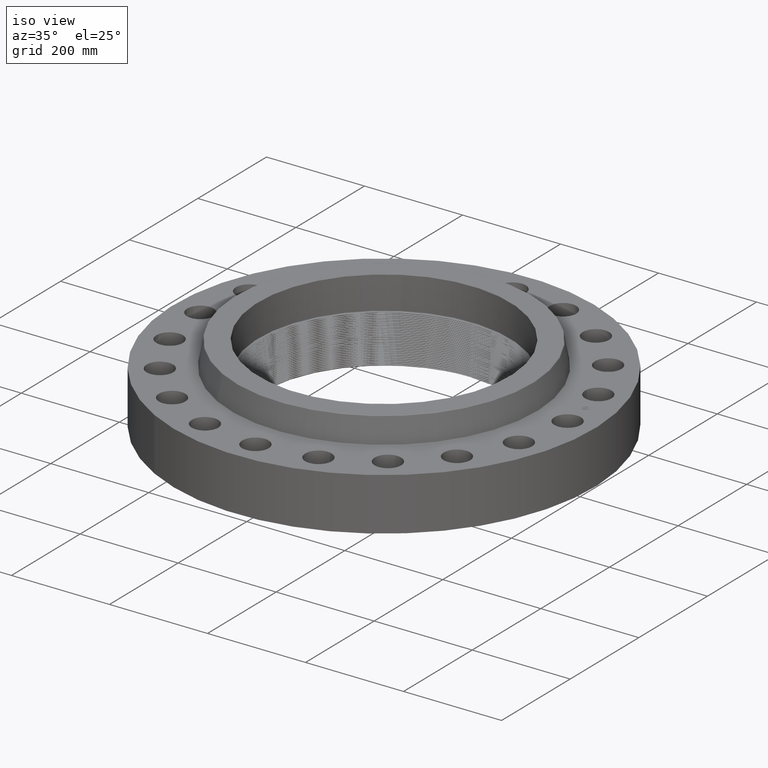
[diagram: clean part render]
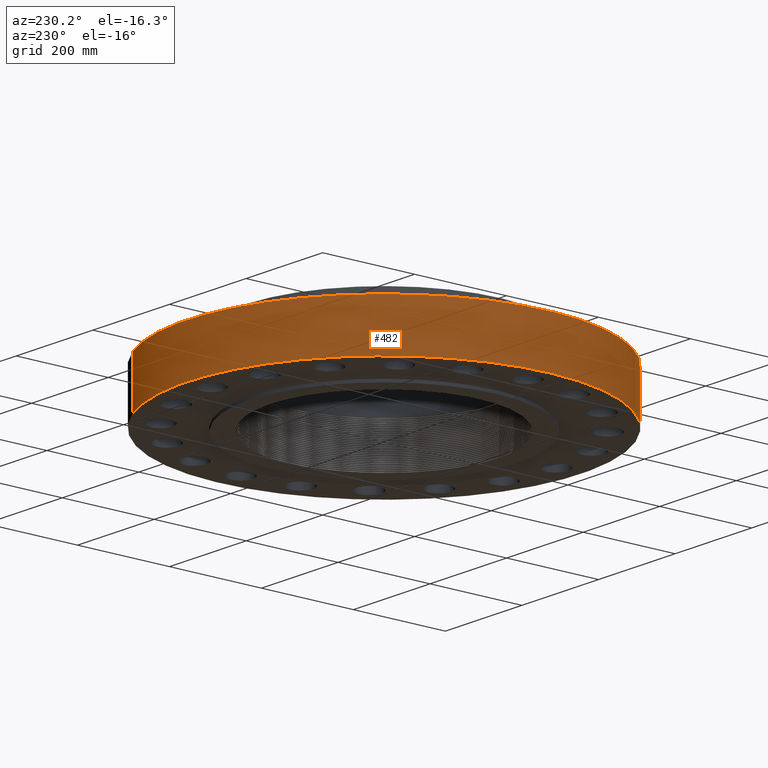
[diagram: tour spotlight — one face highlighted and labeled with its STEP entity id]
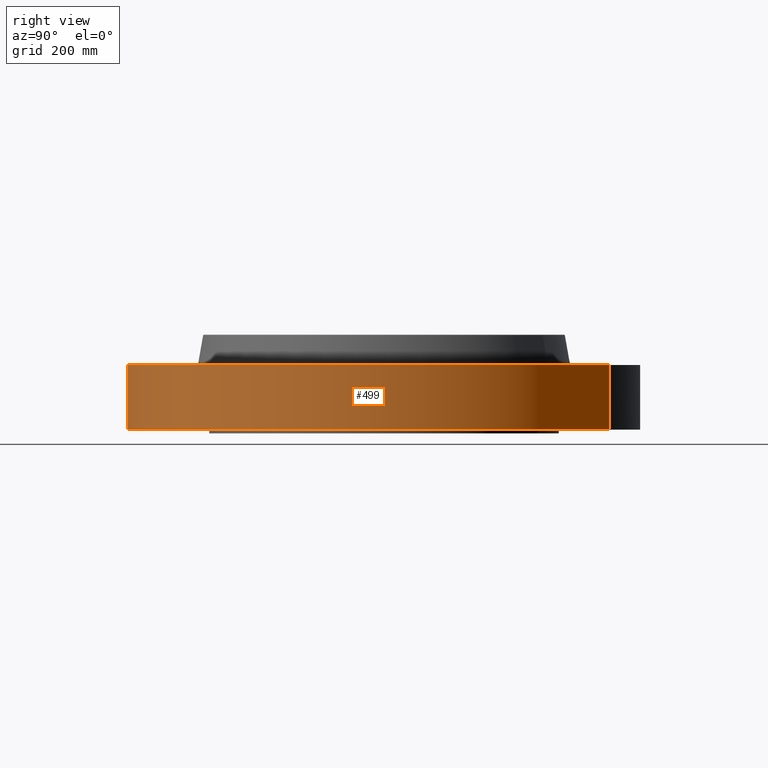
[diagram: tour spotlight — one face highlighted and labeled with its STEP entity id]
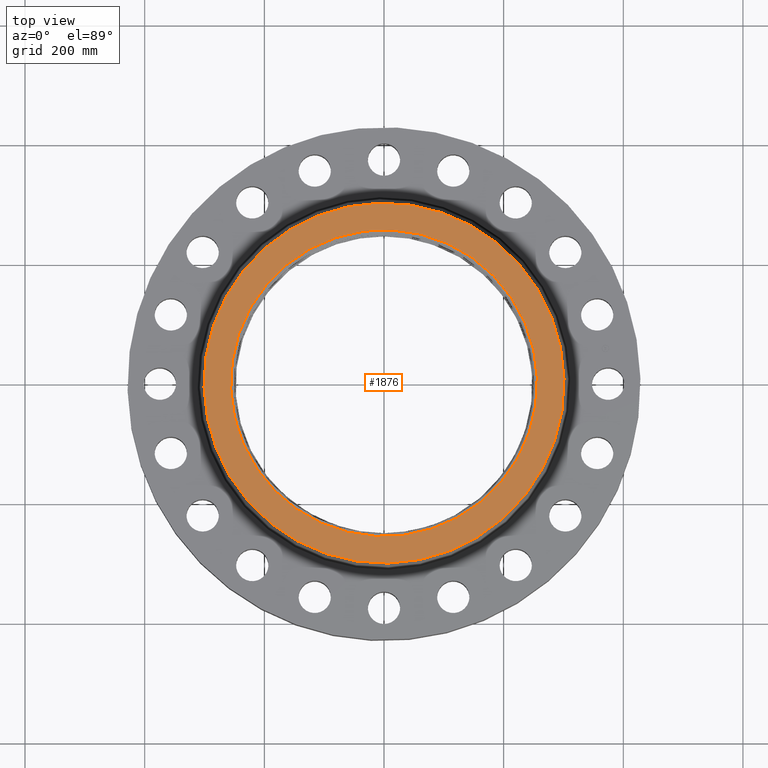
[diagram: tour spotlight — one face highlighted and labeled with its STEP entity id]
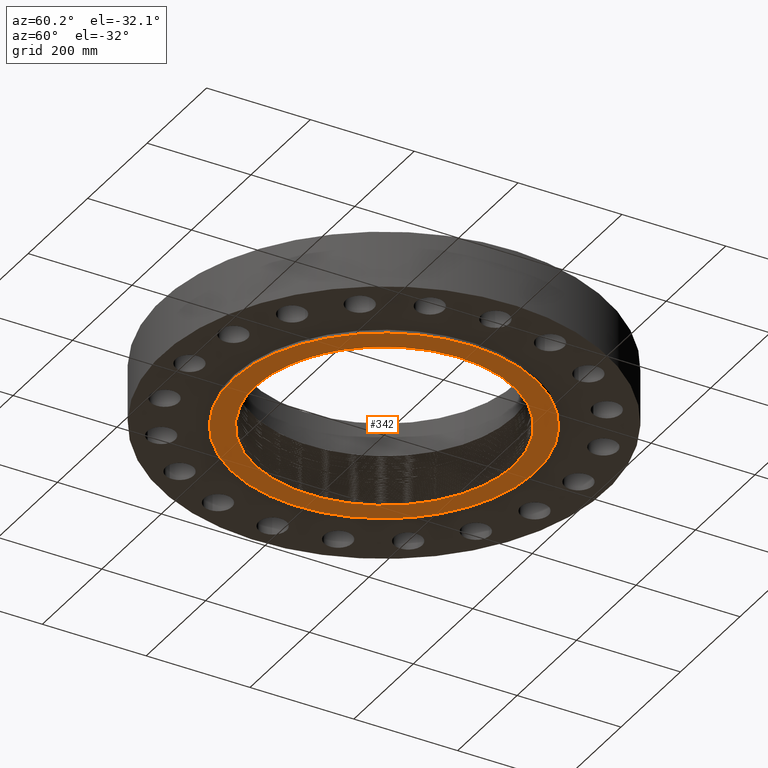
[diagram: tour spotlight — one face highlighted and labeled with its STEP entity id]
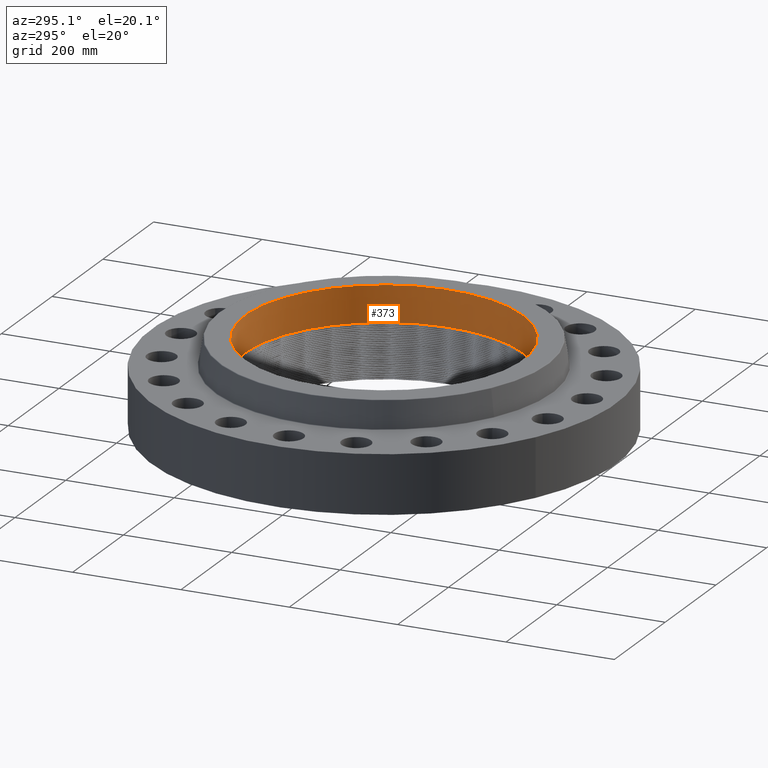
[diagram: tour spotlight — one face highlighted and labeled with its STEP entity id]
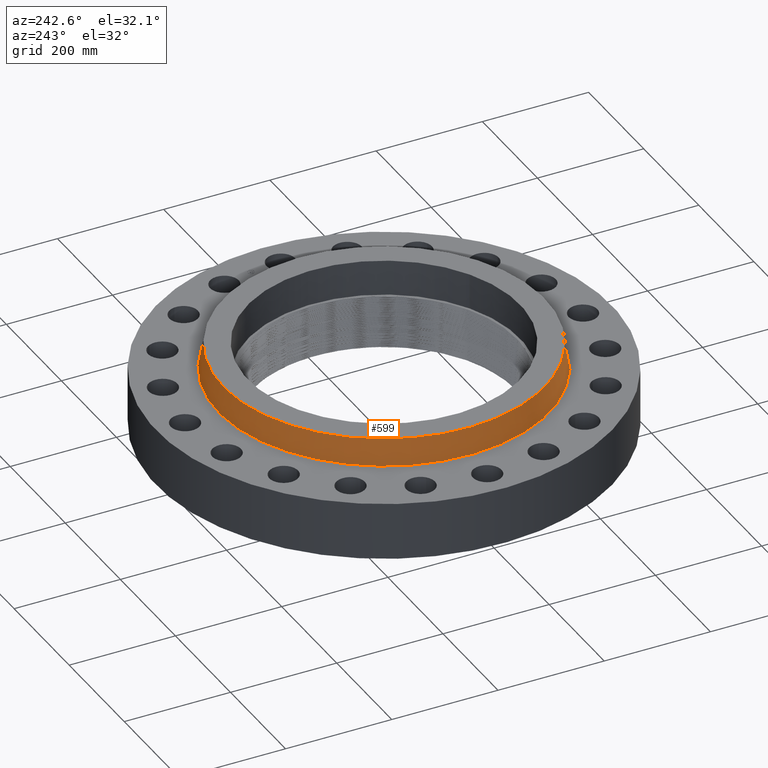
[diagram: tour spotlight — one face highlighted and labeled with its STEP entity id]
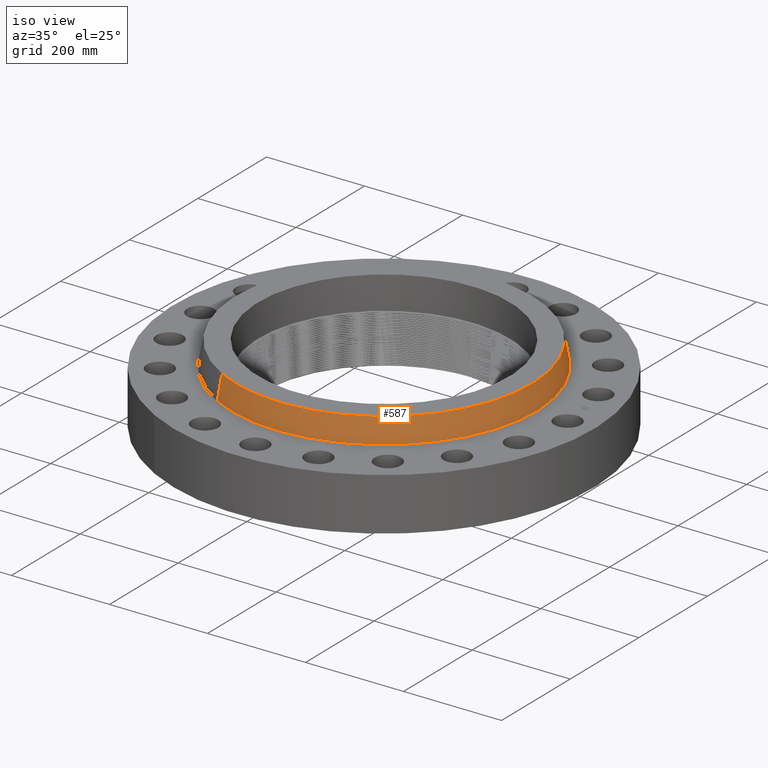
[diagram: tour spotlight — one face highlighted and labeled with its STEP entity id]
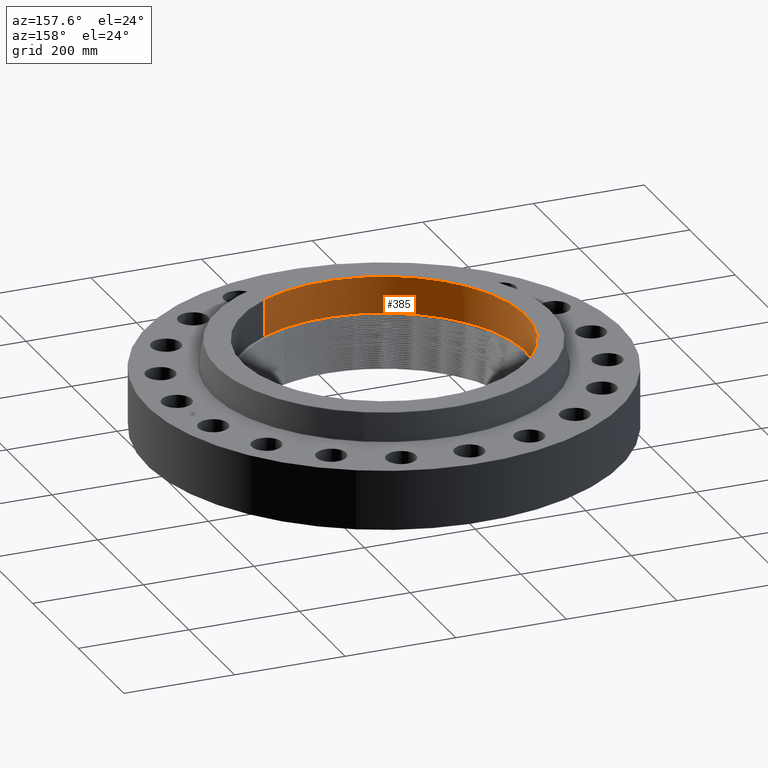
[diagram: tour spotlight — one face highlighted and labeled with its STEP entity id]
A machine part: a face-by-face anatomy tour. The part has 758 B-rep faces; the first image is the clean iso view, then the 8 largest visible faces are spotlighted one at a time (largest first), each with its STEP entity span.

Face 1 — auxiliary view, entity #482. In plain terms, the highlighted cylindrical surface (partial cylindrical patch) has radius 428.625 mm, axis along (0, 0, -1).
Definition (entity closure, byte-faithful):
#446=AXIS2_PLACEMENT_3D('Cylinder Axis2P3D',#443,#444,#445) ;
#450=AXIS2_PLACEMENT_3D('Circle Axis2P3D',#448,#449,$) ;
#466=AXIS2_PLACEMENT_3D('Circle Axis2P3D',#464,#465,$) ;
#443=CARTESIAN_POINT('Axis2P3D Location',(0.,0.,3.00000000001)) ;
#448=CARTESIAN_POINT('Axis2P3D Location',(0.,0.,2.23792987641E-015)) ;
#452=CARTESIAN_POINT('Vertex',(-8.09030596398,-14.809205732,2.23792987641E-015)) ;
#454=CARTESIAN_POINT('Vertex',(8.09030596398,14.809205732,2.23792987641E-015)) ;
#457=CARTESIAN_POINT('Line Origine',(-8.09030596398,-14.809205732,2.12500000001)) ;
#461=CARTESIAN_POINT('Vertex',(-8.09030596398,-14.809205732,4.25000000002)) ;
#464=CARTESIAN_POINT('Axis2P3D Location',(0.,0.,4.25000000002)) ;
#468=CARTESIAN_POINT('Vertex',(8.09030596398,14.809205732,4.25000000002)) ;
#471=CARTESIAN_POINT('Line Origine',(8.09030596398,14.809205732,2.12500000001)) ;
#444=DIRECTION('Axis2P3D Direction',(0.,0.,-0.0393700787402)) ;
#445=DIRECTION('Axis2P3D XDirection',(0.0188750212049,0.0345504945626,0.)) ;
#449=DIRECTION('Axis2P3D Direction',(0.,0.,-0.0393700787402)) ;
#458=DIRECTION('Vector Direction',(0.,0.,-0.0393700787402)) ;
#465=DIRECTION('Axis2P3D Direction',(0.,0.,-0.0393700787402)) ;
#472=DIRECTION('Vector Direction',(0.,0.,-0.0393700787402)) ;
#459=VECTOR('Line Direction',#458,0.0393700787402) ;
#473=VECTOR('Line Direction',#472,0.0393700787402) ;
#477=ORIENTED_EDGE('',*,*,#456,.F.) ;
#478=ORIENTED_EDGE('',*,*,#463,.T.) ;
#479=ORIENTED_EDGE('',*,*,#470,.T.) ;
#480=ORIENTED_EDGE('',*,*,#475,.F.) ;
#482=ADVANCED_FACE('PartBody',(#481),#447,.T.) ;
#451=CIRCLE('generated circle',#450,16.8750000001) ;
#467=CIRCLE('generated circle',#466,16.8750000001) ;
#447=CYLINDRICAL_SURFACE('generated cylinder',#446,16.8750000001) ;
#456=EDGE_CURVE('',#453,#455,#451,.T.) ;
#463=EDGE_CURVE('',#453,#462,#460,.F.) ;
#470=EDGE_CURVE('',#462,#469,#467,.T.) ;
#475=EDGE_CURVE('',#455,#469,#474,.F.) ;
#476=EDGE_LOOP('',(#477,#478,#479,#480)) ;
#481=FACE_OUTER_BOUND('',#476,.T.) ;
#460=LINE('Line',#457,#459) ;
#474=LINE('Line',#471,#473) ;
#453=VERTEX_POINT('',#452) ;
#455=VERTEX_POINT('',#454) ;
#462=VERTEX_POINT('',#461) ;
#469=VERTEX_POINT('',#468) ;

Face 2 — right view, entity #499. In plain terms, the highlighted cylindrical surface (partial cylindrical patch) has radius 428.625 mm, axis along (0, 0, -1).
Definition (entity closure, byte-faithful):
#446=AXIS2_PLACEMENT_3D('Cylinder Axis2P3D',#443,#444,#445) ;
#485=AXIS2_PLACEMENT_3D('Circle Axis2P3D',#483,#484,$) ;
#490=AXIS2_PLACEMENT_3D('Circle Axis2P3D',#488,#489,$) ;
#443=CARTESIAN_POINT('Axis2P3D Location',(0.,0.,3.00000000001)) ;
#452=CARTESIAN_POINT('Vertex',(-8.09030596398,-14.809205732,2.23792987641E-015)) ;
#454=CARTESIAN_POINT('Vertex',(8.09030596398,14.809205732,2.23792987641E-015)) ;
#457=CARTESIAN_POINT('Line Origine',(-8.09030596398,-14.809205732,2.12500000001)) ;
#461=CARTESIAN_POINT('Vertex',(-8.09030596398,-14.809205732,4.25000000002)) ;
#468=CARTESIAN_POINT('Vertex',(8.09030596398,14.809205732,4.25000000002)) ;
#471=CARTESIAN_POINT('Line Origine',(8.09030596398,14.809205732,2.12500000001)) ;
#483=CARTESIAN_POINT('Axis2P3D Location',(0.,0.,2.23792987641E-015)) ;
#488=CARTESIAN_POINT('Axis2P3D Location',(0.,0.,4.25000000002)) ;
#444=DIRECTION('Axis2P3D Direction',(0.,0.,-0.0393700787402)) ;
#445=DIRECTION('Axis2P3D XDirection',(0.0188750212049,0.0345504945626,0.)) ;
#458=DIRECTION('Vector Direction',(0.,0.,-0.0393700787402)) ;
#472=DIRECTION('Vector Direction',(0.,0.,-0.0393700787402)) ;
#484=DIRECTION('Axis2P3D Direction',(0.,0.,-0.0393700787402)) ;
#489=DIRECTION('Axis2P3D Direction',(0.,0.,-0.0393700787402)) ;
#459=VECTOR('Line Direction',#458,0.0393700787402) ;
#473=VECTOR('Line Direction',#472,0.0393700787402) ;
#494=ORIENTED_EDGE('',*,*,#487,.F.) ;
#495=ORIENTED_EDGE('',*,*,#475,.T.) ;
#496=ORIENTED_EDGE('',*,*,#492,.T.) ;
#497=ORIENTED_EDGE('',*,*,#463,.F.) ;
#499=ADVANCED_FACE('PartBody',(#498),#447,.T.) ;
#486=CIRCLE('generated circle',#485,16.8750000001) ;
#491=CIRCLE('generated circle',#490,16.8750000001) ;
#447=CYLINDRICAL_SURFACE('generated cylinder',#446,16.8750000001) ;
#463=EDGE_CURVE('',#453,#462,#460,.F.) ;
#475=EDGE_CURVE('',#455,#469,#474,.F.) ;
#487=EDGE_CURVE('',#455,#453,#486,.T.) ;
#492=EDGE_CURVE('',#469,#462,#491,.T.) ;
#493=EDGE_LOOP('',(#494,#495,#496,#497)) ;
#498=FACE_OUTER_BOUND('',#493,.T.) ;
#460=LINE('Line',#457,#459) ;
#474=LINE('Line',#471,#473) ;
#453=VERTEX_POINT('',#452) ;
#455=VERTEX_POINT('',#454) ;
#462=VERTEX_POINT('',#461) ;
#469=VERTEX_POINT('',#468) ;

Face 3 — top view, entity #1876. In plain terms, the highlighted planar face has unit normal (0, 0, -1).
Definition (entity closure, byte-faithful):
#350=AXIS2_PLACEMENT_3D('Circle Axis2P3D',#348,#349,$) ;
#376=AXIS2_PLACEMENT_3D('Circle Axis2P3D',#374,#375,$) ;
#614=AXIS2_PLACEMENT_3D('Circle Axis2P3D',#612,#613,$) ;
#633=AXIS2_PLACEMENT_3D('Circle Axis2P3D',#631,#632,$) ;
#1866=AXIS2_PLACEMENT_3D('Plane Axis2P3D',#1863,#1864,#1865) ;
#348=CARTESIAN_POINT('Axis2P3D Location',(0.,0.,6.25000000003)) ;
#352=CARTESIAN_POINT('Vertex',(-4.83980081223,8.85919596232,6.25000000003)) ;
#354=CARTESIAN_POINT('Vertex',(4.83980081223,-8.85919596232,6.25000000003)) ;
#374=CARTESIAN_POINT('Axis2P3D Location',(0.,0.,6.25000000003)) ;
#609=CARTESIAN_POINT('Vertex',(5.67975438497,10.396720664,6.25000000003)) ;
#612=CARTESIAN_POINT('Axis2P3D Location',(0.,0.,6.25000000003)) ;
#616=CARTESIAN_POINT('Vertex',(-5.67975438497,-10.396720664,6.25000000003)) ;
#631=CARTESIAN_POINT('Axis2P3D Location',(0.,0.,6.25000000003)) ;
#1863=CARTESIAN_POINT('Axis2P3D Location',(0.,11.8470000608,6.25000000003)) ;
#349=DIRECTION('Axis2P3D Direction',(0.,0.,0.0393700787402)) ;
#375=DIRECTION('Axis2P3D Direction',(0.,0.,0.0393700787402)) ;
#613=DIRECTION('Axis2P3D Direction',(0.,0.,-0.0393700787402)) ;
#632=DIRECTION('Axis2P3D Direction',(0.,0.,-0.0393700787402)) ;
#1864=DIRECTION('Axis2P3D Direction',(0.,0.,-0.0393700787402)) ;
#1865=DIRECTION('Axis2P3D XDirection',(0.0393700787402,0.,0.)) ;
#1869=ORIENTED_EDGE('',*,*,#618,.F.) ;
#1870=ORIENTED_EDGE('',*,*,#635,.F.) ;
#1873=ORIENTED_EDGE('',*,*,#356,.T.) ;
#1874=ORIENTED_EDGE('',*,*,#378,.T.) ;
#1875=FACE_BOUND('',#1872,.T.) ;
#1876=ADVANCED_FACE('PartBody',(#1871,#1875),#1867,.F.) ;
#351=CIRCLE('generated circle',#350,10.095) ;
#377=CIRCLE('generated circle',#376,10.095) ;
#615=CIRCLE('generated circle',#614,11.8470000608) ;
#634=CIRCLE('generated circle',#633,11.8470000608) ;
#356=EDGE_CURVE('',#353,#355,#351,.F.) ;
#378=EDGE_CURVE('',#355,#353,#377,.F.) ;
#618=EDGE_CURVE('',#610,#617,#615,.T.) ;
#635=EDGE_CURVE('',#617,#610,#634,.T.) ;
#1868=EDGE_LOOP('',(#1869,#1870)) ;
#1872=EDGE_LOOP('',(#1873,#1874)) ;
#1871=FACE_OUTER_BOUND('',#1868,.T.) ;
#1867=PLANE('',#1866) ;
#353=VERTEX_POINT('',#352) ;
#355=VERTEX_POINT('',#354) ;
#610=VERTEX_POINT('',#609) ;
#617=VERTEX_POINT('',#616) ;

Face 4 — auxiliary view, entity #342. In plain terms, the highlighted planar face has unit normal (0, 0, -1).
Definition (entity closure, byte-faithful):
#195=AXIS2_PLACEMENT_3D('Plane Axis2P3D',#192,#193,#194) ;
#199=AXIS2_PLACEMENT_3D('Circle Axis2P3D',#197,#198,$) ;
#208=AXIS2_PLACEMENT_3D('Circle Axis2P3D',#206,#207,$) ;
#330=AXIS2_PLACEMENT_3D('Circle Axis2P3D',#328,#329,$) ;
#192=CARTESIAN_POINT('Axis2P3D Location',(0.,0.,-0.250000000001)) ;
#197=CARTESIAN_POINT('Axis2P3D Location',(0.,0.,-0.250000000001)) ;
#201=CARTESIAN_POINT('Vertex',(5.51339369397,10.0921994618,-0.250000000001)) ;
#203=CARTESIAN_POINT('Vertex',(-5.51339369397,-10.0921994618,-0.250000000001)) ;
#206=CARTESIAN_POINT('Axis2P3D Location',(0.,0.,-0.250000000001)) ;
#216=CARTESIAN_POINT('Control Point',(4.68593768939,-8.57755435564,-0.250000000001)) ;
#217=CARTESIAN_POINT('Control Point',(4.20009192407,-8.8410177948,-0.250000000001)) ;
#218=CARTESIAN_POINT('Control Point',(3.6956726276,-9.07011392471,-0.250000000001)) ;
#219=CARTESIAN_POINT('Control Point',(3.17592890707,-9.26308453131,-0.250000000001)) ;
#220=CARTESIAN_POINT('Control Point',(2.64435840526,-9.41864359521,-0.250000000001)) ;
#221=CARTESIAN_POINT('Control Point',(2.10454975658,-9.53601865754,-0.250000000001)) ;
#222=CARTESIAN_POINT('Vertex',(4.68593768939,-8.57755435564,-0.250000000001)) ;
#224=CARTESIAN_POINT('Vertex',(2.10454972516,-9.53601879853,-0.25000001683)) ;
#228=CARTESIAN_POINT('Control Point',(1.57569914282E-007,9.85422903371,-0.250000000001)) ;
#229=CARTESIAN_POINT('Control Point',(0.610416221726,9.85234932571,-0.250000000001)) ;
#230=CARTESIAN_POINT('Control Point',(1.22061590325,9.8032044308,-0.250000000001)) ;
#231=CARTESIAN_POINT('Control Point',(1.82565042755,9.70682436543,-0.250000000001)) ;
#232=CARTESIAN_POINT('Control Point',(3.01584733147,9.42115871141,-0.250000000001)) ;
#233=CARTESIAN_POINT('Control Point',(4.1473089878,8.95583857676,-0.250000000001)) ;
#234=CARTESIAN_POINT('Control Point',(4.69384230738,8.67972376104,-0.250000000001)) ;
#235=CARTESIAN_POINT('Control Point',(5.73960656408,8.04512779312,-0.250000000001)) ;
#236=CARTESIAN_POINT('Control Point',(6.67485528703,7.2572448977,-0.250000000001)) ;
#237=CARTESIAN_POINT('Control Point',(7.11095815466,6.82777664671,-0.250000000001)) ;
#238=CARTESIAN_POINT('Control Point',(7.91286316613,5.90493635664,-0.250000000001)) ;
#239=CARTESIAN_POINT('Control Point',(8.56290593034,4.86957701129,-0.250000000001)) ;
#240=CARTESIAN_POINT('Control Point',(8.84701328967,4.32776207451,-0.250000000001)) ;
#241=CARTESIAN_POINT('Control Point',(9.21640499851,3.46661885481,-0.250000000001)) ;
#242=CARTESIAN_POINT('Control Point',(9.4805811954,2.56970400113,-0.250000000001)) ;
#243=CARTESIAN_POINT('Control Point',(9.5594864813,2.2541685813,-0.250000000001)) ;
#244=CARTESIAN_POINT('Control Point',(9.74853074058,1.33869826719,-0.250000000001)) ;
#245=CARTESIAN_POINT('Control Point',(9.82788611182,0.40545509554,-0.250000000001)) ;
#246=CARTESIAN_POINT('Control Point',(9.83219854977,-0.205868440599,-0.250000000001)) ;
#247=CARTESIAN_POINT('Control Point',(9.74591661854,-1.42413371925,-0.250000000001)) ;
#248=CARTESIAN_POINT('Control Point',(9.47277296532,-2.61400400498,-0.250000000001)) ;
#249=CARTESIAN_POINT('Control Point',(9.290193056,-3.19710814977,-0.250000000001)) ;
#250=CARTESIAN_POINT('Control Point',(8.83605107021,-4.33006479226,-0.250000000001)) ;
#251=CARTESIAN_POINT('Control Point',(8.21258836213,-5.3790872163,-0.250000000001)) ;
#252=CARTESIAN_POINT('Control Point',(7.86068090376,-5.87826101619,-0.250000000001)) ;
#253=CARTESIAN_POINT('Control Point',(7.09039677128,-6.80793984618,-0.250000000001)) ;
#254=CARTESIAN_POINT('Control Point',(6.18718991217,-7.60877368734,-0.250000000001)) ;
#255=CARTESIAN_POINT('Control Point',(5.71104483861,-7.97010097764,-0.250000000001)) ;
#256=CARTESIAN_POINT('Control Point',(5.20926397783,-8.29376605565,-0.250000000001)) ;
#257=CARTESIAN_POINT('Control Point',(4.68593768939,-8.57755435564,-0.250000000001)) ;
#258=CARTESIAN_POINT('Vertex',(1.57569920716E-007,9.85422903371,-0.250000000001)) ;
#262=CARTESIAN_POINT('Control Point',(-3.19484020036,9.33253356259,-0.250000000001)) ;
#263=CARTESIAN_POINT('Control Point',(-2.6165001339,9.52853331578,-0.250000000001)) ;
#264=CARTESIAN_POINT('Control Point',(-2.02306503866,9.6797554251,-0.250000000001)) ;
#265=CARTESIAN_POINT('Control Point',(-1.4191451144,9.78464406175,-0.250000000001)) ;
#266=CARTESIAN_POINT('Control Point',(-0.769797011607,9.84612996914,-0.250000000001)) ;
#267=CARTESIAN_POINT('Control Point',(-0.119602763731,9.85399247922,-0.250000000001)) ;
#268=CARTESIAN_POINT('Control Point',(-0.0797339943699,9.85427295399,-0.250000000001)) ;
#269=CARTESIAN_POINT('Control Point',(-0.0398664694022,9.85435179853,-0.250000000001)) ;
#270=CARTESIAN_POINT('Control Point',(1.57569920698E-007,9.85422903371,-0.250000000001)) ;
#271=CARTESIAN_POINT('Vertex',(-3.19484020036,9.33253356259,-0.250000000001)) ;
#275=CARTESIAN_POINT('Control Point',(-4.7264312441,8.65167418276,-0.250000000001)) ;
#276=CARTESIAN_POINT('Control Point',(-4.43248304411,8.81355971045,-0.250000000001)) ;
#277=CARTESIAN_POINT('Control Point',(-4.13162386382,8.9629505345,-0.250000000001)) ;
#278=CARTESIAN_POINT('Control Point',(-3.82456446674,9.09945325395,-0.250000000001)) ;
#279=CARTESIAN_POINT('Control Point',(-3.5120484608,9.22273618015,-0.250000000001)) ;
#280=CARTESIAN_POINT('Control Point',(-3.19484020036,9.33253356259,-0.250000000001)) ;
#281=CARTESIAN_POINT('Vertex',(-4.7264312441,8.65167418276,-0.250000000001)) ;
#285=CARTESIAN_POINT('Control Point',(-4.7264312441,8.65167418276,-0.250000000001)) ;
#286=CARTESIAN_POINT('Control Point',(-5.26122669512,8.35714731115,-0.250000000001)) ;
#287=CARTESIAN_POINT('Control Point',(-5.77315102572,8.02125978352,-0.250000000001)) ;
#288=CARTESIAN_POINT('Control Point',(-6.25789094751,7.64640100789,-0.250000000001)) ;
#289=CARTESIAN_POINT('Control Point',(-7.16534164377,6.824721884,-0.250000000001)) ;
#290=CARTESIAN_POINT('Control Point',(-7.93511981474,5.87354312002,-0.250000000001)) ;
#291=CARTESIAN_POINT('Control Point',(-8.28231396647,5.36904437274,-0.250000000001)) ;
#292=CARTESIAN_POINT('Control Point',(-8.89565639916,4.31050392781,-0.250000000001)) ;
#293=CARTESIAN_POINT('Control Point',(-9.33851009407,3.17042953184,-0.250000000001)) ;
#294=CARTESIAN_POINT('Control Point',(-9.51522413409,2.58436870658,-0.250000000001)) ;
#295=CARTESIAN_POINT('Control Point',(-9.776316067,1.38984308136,-0.250000000001)) ;
#296=CARTESIAN_POINT('Control Point',(-9.85016480226,0.169463632781,-0.250000000001)) ;
#297=CARTESIAN_POINT('Control Point',(-9.83960751202,-0.442280020623,-0.250000000001)) ;
#298=CARTESIAN_POINT('Control Point',(-9.74300742841,-1.45629362383,-0.250000000001)) ;
#299=CARTESIAN_POINT('Control Point',(-9.51710196244,-2.44757268736,-0.250000000001)) ;
#300=CARTESIAN_POINT('Control Point',(-9.40631003395,-2.83899096696,-0.250000000001)) ;
#301=CARTESIAN_POINT('Control Point',(-9.07921262966,-3.80147451815,-0.250000000001)) ;
#302=CARTESIAN_POINT('Control Point',(-8.63032961115,-4.71494441247,-0.250000000001)) ;
#303=CARTESIAN_POINT('Control Point',(-8.31894761684,-5.2409098977,-0.250000000001)) ;
#304=CARTESIAN_POINT('Control Point',(-7.61712973365,-6.24017690955,-0.250000000001)) ;
#305=CARTESIAN_POINT('Control Point',(-6.76985684702,-7.11879277493,-0.250000000001)) ;
#306=CARTESIAN_POINT('Control Point',(-6.31287773191,-7.52427252549,-0.250000000001)) ;
#307=CARTESIAN_POINT('Control Point',(-5.3398811265,-8.26081372572,-0.250000000001)) ;
#308=CARTESIAN_POINT('Control Point',(-4.26500646256,-8.8381825511,-0.250000000001)) ;
#309=CARTESIAN_POINT('Control Point',(-3.70623984621,-9.08442660026,-0.250000000001)) ;
#310=CARTESIAN_POINT('Control Point',(-2.64383446271,-9.4569087194,-0.250000000001)) ;
#311=CARTESIAN_POINT('Control Point',(-1.54009490776,-9.67373577606,-0.250000000001)) ;
#312=CARTESIAN_POINT('Control Point',(-1.02856074082,-9.73963651866,-0.250000000001)) ;
#313=CARTESIAN_POINT('Control Point',(-0.514191689865,-9.77169906453,-0.250000000001)) ;
#314=CARTESIAN_POINT('Control Point',(1.42950295157E-006,-9.76993382593,-0.250000000001)) ;
#315=CARTESIAN_POINT('Vertex',(1.42950296388E-006,-9.76993382593,-0.250000000001)) ;
#319=CARTESIAN_POINT('Control Point',(1.42950296276E-006,-9.76993382593,-0.250000000001)) ;
#320=CARTESIAN_POINT('Control Point',(0.258902883289,-9.76904501041,-0.250000000001)) ;
#321=CARTESIAN_POINT('Control Point',(0.517765197704,-9.75958007331,-0.250000000001)) ;
#322=CARTESIAN_POINT('Control Point',(0.776206616301,-9.74154037274,-0.250000000001)) ;
#323=CARTESIAN_POINT('Control Point',(1.03384646009,-9.71495305319,-0.250000000001)) ;
#324=CARTESIAN_POINT('Control Point',(1.29030848188,-9.67987033985,-0.250000000001)) ;
#325=CARTESIAN_POINT('Vertex',(1.29030863625,-9.67987023403,-0.249999930258)) ;
#328=CARTESIAN_POINT('Axis2P3D Location',(0.,0.,-0.250000000001)) ;
#193=DIRECTION('Axis2P3D Direction',(0.,0.,-0.0393700787402)) ;
#194=DIRECTION('Axis2P3D XDirection',(0.0393700787402,0.,0.)) ;
#198=DIRECTION('Axis2P3D Direction',(0.,0.,-0.0393700787402)) ;
#207=DIRECTION('Axis2P3D Direction',(0.,0.,-0.0393700787402)) ;
#329=DIRECTION('Axis2P3D Direction',(0.,0.,-0.0393700787402)) ;
#212=ORIENTED_EDGE('',*,*,#205,.T.) ;
#213=ORIENTED_EDGE('',*,*,#210,.T.) ;
#334=ORIENTED_EDGE('',*,*,#226,.F.) ;
#335=ORIENTED_EDGE('',*,*,#260,.F.) ;
#336=ORIENTED_EDGE('',*,*,#273,.F.) ;
#337=ORIENTED_EDGE('',*,*,#283,.F.) ;
#338=ORIENTED_EDGE('',*,*,#317,.T.) ;
#339=ORIENTED_EDGE('',*,*,#327,.T.) ;
#340=ORIENTED_EDGE('',*,*,#332,.F.) ;
#341=FACE_BOUND('',#333,.T.) ;
#342=ADVANCED_FACE('PartBody',(#214,#341),#196,.T.) ;
#215=B_SPLINE_CURVE_WITH_KNOTS('',5,(#216,#217,#218,#219,#220,#221),.UNSPECIFIED.,.F.,.U.,(6,6),(0.,99.460535526),.UNSPECIFIED.) ;
#227=B_SPLINE_CURVE_WITH_KNOTS('',5,(#228,#229,#230,#231,#232,#233,#234,#235,#236,#237,#238,#239,#240,#241,#242,#243,#244,#245,#246,#247,#248,#249,#250,#251,#252,#253,#254,#255,#256,#257),.UNSPECIFIED.,.F.,.U.,(6,3,3,3,3,3,3,3,3,6),(0.,109.412050322,218.868838719,328.345280374,437.782158485,496.130348517,605.534630873,714.971114515,824.408812297,931.542220924),.UNSPECIFIED.) ;
#261=B_SPLINE_CURVE_WITH_KNOTS('',5,(#262,#263,#264,#265,#266,#267,#268,#269,#270),.UNSPECIFIED.,.F.,.U.,(6,3,6),(0.,109.400248174,116.5460126),.UNSPECIFIED.) ;
#274=B_SPLINE_CURVE_WITH_KNOTS('',5,(#275,#276,#277,#278,#279,#280),.UNSPECIFIED.,.F.,.U.,(6,6),(0.,60.1371670471),.UNSPECIFIED.) ;
#284=B_SPLINE_CURVE_WITH_KNOTS('',5,(#285,#286,#287,#288,#289,#290,#291,#292,#293,#294,#295,#296,#297,#298,#299,#300,#301,#302,#303,#304,#305,#306,#307,#308,#309,#310,#311,#312,#313,#314),.UNSPECIFIED.,.F.,.U.,(6,3,3,3,3,3,3,3,3,6),(0.,109.410717169,218.855539651,328.305694609,437.724593054,510.665846362,620.113681952,729.601257083,839.068765206,931.639855687),.UNSPECIFIED.) ;
#318=B_SPLINE_CURVE_WITH_KNOTS('',5,(#319,#320,#321,#322,#323,#324),.UNSPECIFIED.,.F.,.U.,(6,6),(0.,46.6104834956),.UNSPECIFIED.) ;
#200=CIRCLE('generated circle',#199,11.5) ;
#209=CIRCLE('generated circle',#208,11.5) ;
#331=CIRCLE('generated circle',#330,9.76548944405) ;
#205=EDGE_CURVE('',#202,#204,#200,.T.) ;
#210=EDGE_CURVE('',#204,#202,#209,.T.) ;
#226=EDGE_CURVE('',#223,#225,#215,.T.) ;
#260=EDGE_CURVE('',#259,#223,#227,.T.) ;
#273=EDGE_CURVE('',#272,#259,#261,.T.) ;
#283=EDGE_CURVE('',#282,#272,#274,.T.) ;
#317=EDGE_CURVE('',#282,#316,#284,.T.) ;
#327=EDGE_CURVE('',#316,#326,#318,.T.) ;
#332=EDGE_CURVE('',#225,#326,#331,.T.) ;
#211=EDGE_LOOP('',(#212,#213)) ;
#333=EDGE_LOOP('',(#334,#335,#336,#337,#338,#339,#340)) ;
#214=FACE_OUTER_BOUND('',#211,.T.) ;
#196=PLANE('',#195) ;
#202=VERTEX_POINT('',#201) ;
#204=VERTEX_POINT('',#203) ;
#223=VERTEX_POINT('',#222) ;
#225=VERTEX_POINT('',#224) ;
#259=VERTEX_POINT('',#258) ;
#272=VERTEX_POINT('',#271) ;
#282=VERTEX_POINT('',#281) ;
#316=VERTEX_POINT('',#315) ;
#326=VERTEX_POINT('',#325) ;

Face 5 — auxiliary view, entity #373. In plain terms, the highlighted cylindrical surface (partial cylindrical patch) has radius 256.413 mm, axis along (0, 0, 1).
Definition (entity closure, byte-faithful):
#51=AXIS2_PLACEMENT_3D('Circle Axis2P3D',#49,#50,$) ;
#346=AXIS2_PLACEMENT_3D('Cylinder Axis2P3D',#343,#344,#345) ;
#350=AXIS2_PLACEMENT_3D('Circle Axis2P3D',#348,#349,$) ;
#44=CARTESIAN_POINT('Vertex',(-4.83980081223,8.85919596232,3.62000000001)) ;
#46=CARTESIAN_POINT('Vertex',(4.83980081223,-8.85919596232,3.62000000001)) ;
#49=CARTESIAN_POINT('Axis2P3D Location',(0.,0.,3.62000000001)) ;
#343=CARTESIAN_POINT('Axis2P3D Location',(0.,0.,3.62000000001)) ;
#348=CARTESIAN_POINT('Axis2P3D Location',(0.,0.,6.25000000003)) ;
#352=CARTESIAN_POINT('Vertex',(-4.83980081223,8.85919596232,6.25000000003)) ;
#354=CARTESIAN_POINT('Vertex',(4.83980081223,-8.85919596232,6.25000000003)) ;
#357=CARTESIAN_POINT('Line Origine',(-4.83980081223,8.85919596232,4.93500000002)) ;
#362=CARTESIAN_POINT('Line Origine',(4.83980081223,-8.85919596232,4.93500000002)) ;
#50=DIRECTION('Axis2P3D Direction',(0.,0.,0.0393700787402)) ;
#344=DIRECTION('Axis2P3D Direction',(0.,0.,0.0393700787402)) ;
#345=DIRECTION('Axis2P3D XDirection',(-0.0188750212049,0.0345504945626,0.)) ;
#349=DIRECTION('Axis2P3D Direction',(0.,0.,0.0393700787402)) ;
#358=DIRECTION('Vector Direction',(0.,0.,0.0393700787402)) ;
#363=DIRECTION('Vector Direction',(0.,0.,0.0393700787402)) ;
#359=VECTOR('Line Direction',#358,0.0393700787402) ;
#364=VECTOR('Line Direction',#363,0.0393700787402) ;
#368=ORIENTED_EDGE('',*,*,#356,.F.) ;
#369=ORIENTED_EDGE('',*,*,#361,.F.) ;
#370=ORIENTED_EDGE('',*,*,#53,.F.) ;
#371=ORIENTED_EDGE('',*,*,#366,.T.) ;
#373=ADVANCED_FACE('PartBody',(#372),#347,.F.) ;
#52=CIRCLE('generated circle',#51,10.095) ;
#351=CIRCLE('generated circle',#350,10.095) ;
#347=CYLINDRICAL_SURFACE('generated cylinder',#346,10.095) ;
#53=EDGE_CURVE('',#47,#45,#52,.T.) ;
#356=EDGE_CURVE('',#353,#355,#351,.F.) ;
#361=EDGE_CURVE('',#45,#353,#360,.T.) ;
#366=EDGE_CURVE('',#47,#355,#365,.T.) ;
#367=EDGE_LOOP('',(#368,#369,#370,#371)) ;
#372=FACE_OUTER_BOUND('',#367,.T.) ;
#360=LINE('Line',#357,#359) ;
#365=LINE('Line',#362,#364) ;
#45=VERTEX_POINT('',#44) ;
#47=VERTEX_POINT('',#46) ;
#353=VERTEX_POINT('',#352) ;
#355=VERTEX_POINT('',#354) ;

Face 6 — auxiliary view, entity #599. In plain terms, the highlighted conical surface has half-angle 10 deg.
Definition (entity closure, byte-faithful):
#547=AXIS2_PLACEMENT_3D('Circle Axis2P3D',#545,#546,$) ;
#560=AXIS2_PLACEMENT_3D('Cone Axis2P3D',#557,#558,#559) ;
#590=AXIS2_PLACEMENT_3D('Circle Axis2P3D',#588,#589,$) ;
#518=CARTESIAN_POINT('Vertex',(5.86877147624,10.7427141288,4.29958110936)) ;
#525=CARTESIAN_POINT('Vertex',(-5.86877147624,-10.7427141288,4.29958110936)) ;
#545=CARTESIAN_POINT('Axis2P3D Location',(0.,0.,4.29958110936)) ;
#557=CARTESIAN_POINT('Axis2P3D Location',(0.,0.,6.20041889068)) ;
#562=CARTESIAN_POINT('Line Origine',(5.78842719023,10.5956448997,5.25000000002)) ;
#566=CARTESIAN_POINT('Vertex',(5.70808290422,10.4485756707,6.20041889068)) ;
#573=CARTESIAN_POINT('Vertex',(-5.70808290422,-10.4485756707,6.20041889068)) ;
#576=CARTESIAN_POINT('Line Origine',(-5.78842719023,-10.5956448997,5.25000000002)) ;
#588=CARTESIAN_POINT('Axis2P3D Location',(0.,0.,6.20041889068)) ;
#546=DIRECTION('Axis2P3D Direction',(0.,0.,-0.0393700787402)) ;
#558=DIRECTION('Axis2P3D Direction',(0.,0.,-0.0393700787402)) ;
#559=DIRECTION('Axis2P3D XDirection',(-0.0188750212049,-0.0345504945626,0.)) ;
#563=DIRECTION('Vector Direction',(0.00327761303565,0.00599963041829,-0.03877195878)) ;
#577=DIRECTION('Vector Direction',(-0.00327761303565,-0.00599963041829,-0.03877195878)) ;
#589=DIRECTION('Axis2P3D Direction',(0.,0.,-0.0393700787402)) ;
#564=VECTOR('Line Direction',#563,0.0393700787402) ;
#578=VECTOR('Line Direction',#577,0.0393700787402) ;
#594=ORIENTED_EDGE('',*,*,#549,.F.) ;
#595=ORIENTED_EDGE('',*,*,#580,.T.) ;
#596=ORIENTED_EDGE('',*,*,#592,.T.) ;
#597=ORIENTED_EDGE('',*,*,#568,.F.) ;
#599=ADVANCED_FACE('PartBody',(#598),#561,.T.) ;
#548=CIRCLE('generated circle',#547,12.2412575127) ;
#591=CIRCLE('generated circle',#590,11.9060885259) ;
#561=CONICAL_SURFACE('Cone',#560,11.9060885259,0.174532925199) ;
#549=EDGE_CURVE('',#526,#519,#548,.T.) ;
#568=EDGE_CURVE('',#519,#567,#565,.F.) ;
#580=EDGE_CURVE('',#526,#574,#579,.F.) ;
#592=EDGE_CURVE('',#574,#567,#591,.T.) ;
#593=EDGE_LOOP('',(#594,#595,#596,#597)) ;
#598=FACE_OUTER_BOUND('',#593,.T.) ;
#565=LINE('Line',#562,#564) ;
#579=LINE('Line',#576,#578) ;
#519=VERTEX_POINT('',#518) ;
#526=VERTEX_POINT('',#525) ;
#567=VERTEX_POINT('',#566) ;
#574=VERTEX_POINT('',#573) ;

Face 7 — iso view, entity #587. In plain terms, the highlighted conical surface has half-angle 10 deg.
Definition (entity closure, byte-faithful):
#523=AXIS2_PLACEMENT_3D('Circle Axis2P3D',#521,#522,$) ;
#560=AXIS2_PLACEMENT_3D('Cone Axis2P3D',#557,#558,#559) ;
#571=AXIS2_PLACEMENT_3D('Circle Axis2P3D',#569,#570,$) ;
#518=CARTESIAN_POINT('Vertex',(5.86877147624,10.7427141288,4.29958110936)) ;
#521=CARTESIAN_POINT('Axis2P3D Location',(0.,0.,4.29958110936)) ;
#525=CARTESIAN_POINT('Vertex',(-5.86877147624,-10.7427141288,4.29958110936)) ;
#557=CARTESIAN_POINT('Axis2P3D Location',(0.,0.,6.20041889068)) ;
#562=CARTESIAN_POINT('Line Origine',(5.78842719023,10.5956448997,5.25000000002)) ;
#566=CARTESIAN_POINT('Vertex',(5.70808290422,10.4485756707,6.20041889068)) ;
#569=CARTESIAN_POINT('Axis2P3D Location',(0.,0.,6.20041889068)) ;
#573=CARTESIAN_POINT('Vertex',(-5.70808290422,-10.4485756707,6.20041889068)) ;
#576=CARTESIAN_POINT('Line Origine',(-5.78842719023,-10.5956448997,5.25000000002)) ;
#522=DIRECTION('Axis2P3D Direction',(0.,0.,-0.0393700787402)) ;
#558=DIRECTION('Axis2P3D Direction',(0.,0.,-0.0393700787402)) ;
#559=DIRECTION('Axis2P3D XDirection',(-0.0188750212049,-0.0345504945626,0.)) ;
#563=DIRECTION('Vector Direction',(0.00327761303565,0.00599963041829,-0.03877195878)) ;
#570=DIRECTION('Axis2P3D Direction',(0.,0.,-0.0393700787402)) ;
#577=DIRECTION('Vector Direction',(-0.00327761303565,-0.00599963041829,-0.03877195878)) ;
#564=VECTOR('Line Direction',#563,0.0393700787402) ;
#578=VECTOR('Line Direction',#577,0.0393700787402) ;
#582=ORIENTED_EDGE('',*,*,#527,.F.) ;
#583=ORIENTED_EDGE('',*,*,#568,.T.) ;
#584=ORIENTED_EDGE('',*,*,#575,.T.) ;
#585=ORIENTED_EDGE('',*,*,#580,.F.) ;
#587=ADVANCED_FACE('PartBody',(#586),#561,.T.) ;
#524=CIRCLE('generated circle',#523,12.2412575127) ;
#572=CIRCLE('generated circle',#571,11.9060885259) ;
#561=CONICAL_SURFACE('Cone',#560,11.9060885259,0.174532925199) ;
#527=EDGE_CURVE('',#519,#526,#524,.T.) ;
#568=EDGE_CURVE('',#519,#567,#565,.F.) ;
#575=EDGE_CURVE('',#567,#574,#572,.T.) ;
#580=EDGE_CURVE('',#526,#574,#579,.F.) ;
#581=EDGE_LOOP('',(#582,#583,#584,#585)) ;
#586=FACE_OUTER_BOUND('',#581,.T.) ;
#565=LINE('Line',#562,#564) ;
#579=LINE('Line',#576,#578) ;
#519=VERTEX_POINT('',#518) ;
#526=VERTEX_POINT('',#525) ;
#567=VERTEX_POINT('',#566) ;
#574=VERTEX_POINT('',#573) ;

Face 8 — auxiliary view, entity #385. In plain terms, the highlighted cylindrical surface (partial cylindrical patch) has radius 256.413 mm, axis along (0, 0, 1).
Definition (entity closure, byte-faithful):
#42=AXIS2_PLACEMENT_3D('Circle Axis2P3D',#40,#41,$) ;
#346=AXIS2_PLACEMENT_3D('Cylinder Axis2P3D',#343,#344,#345) ;
#376=AXIS2_PLACEMENT_3D('Circle Axis2P3D',#374,#375,$) ;
#40=CARTESIAN_POINT('Axis2P3D Location',(0.,0.,3.62000000001)) ;
#44=CARTESIAN_POINT('Vertex',(-4.83980081223,8.85919596232,3.62000000001)) ;
#46=CARTESIAN_POINT('Vertex',(4.83980081223,-8.85919596232,3.62000000001)) ;
#343=CARTESIAN_POINT('Axis2P3D Location',(0.,0.,3.62000000001)) ;
#352=CARTESIAN_POINT('Vertex',(-4.83980081223,8.85919596232,6.25000000003)) ;
#354=CARTESIAN_POINT('Vertex',(4.83980081223,-8.85919596232,6.25000000003)) ;
#357=CARTESIAN_POINT('Line Origine',(-4.83980081223,8.85919596232,4.93500000002)) ;
#362=CARTESIAN_POINT('Line Origine',(4.83980081223,-8.85919596232,4.93500000002)) ;
#374=CARTESIAN_POINT('Axis2P3D Location',(0.,0.,6.25000000003)) ;
#41=DIRECTION('Axis2P3D Direction',(0.,0.,0.0393700787402)) ;
#344=DIRECTION('Axis2P3D Direction',(0.,0.,0.0393700787402)) ;
#345=DIRECTION('Axis2P3D XDirection',(-0.0188750212049,0.0345504945626,0.)) ;
#358=DIRECTION('Vector Direction',(0.,0.,0.0393700787402)) ;
#363=DIRECTION('Vector Direction',(0.,0.,0.0393700787402)) ;
#375=DIRECTION('Axis2P3D Direction',(0.,0.,0.0393700787402)) ;
#359=VECTOR('Line Direction',#358,0.0393700787402) ;
#364=VECTOR('Line Direction',#363,0.0393700787402) ;
#380=ORIENTED_EDGE('',*,*,#378,.F.) ;
#381=ORIENTED_EDGE('',*,*,#366,.F.) ;
#382=ORIENTED_EDGE('',*,*,#48,.F.) ;
#383=ORIENTED_EDGE('',*,*,#361,.T.) ;
#385=ADVANCED_FACE('PartBody',(#384),#347,.F.) ;
#43=CIRCLE('generated circle',#42,10.095) ;
#377=CIRCLE('generated circle',#376,10.095) ;
#347=CYLINDRICAL_SURFACE('generated cylinder',#346,10.095) ;
#48=EDGE_CURVE('',#45,#47,#43,.T.) ;
#361=EDGE_CURVE('',#45,#353,#360,.T.) ;
#366=EDGE_CURVE('',#47,#355,#365,.T.) ;
#378=EDGE_CURVE('',#355,#353,#377,.F.) ;
#379=EDGE_LOOP('',(#380,#381,#382,#383)) ;
#384=FACE_OUTER_BOUND('',#379,.T.) ;
#360=LINE('Line',#357,#359) ;
#365=LINE('Line',#362,#364) ;
#45=VERTEX_POINT('',#44) ;
#47=VERTEX_POINT('',#46) ;
#353=VERTEX_POINT('',#352) ;
#355=VERTEX_POINT('',#354) ;